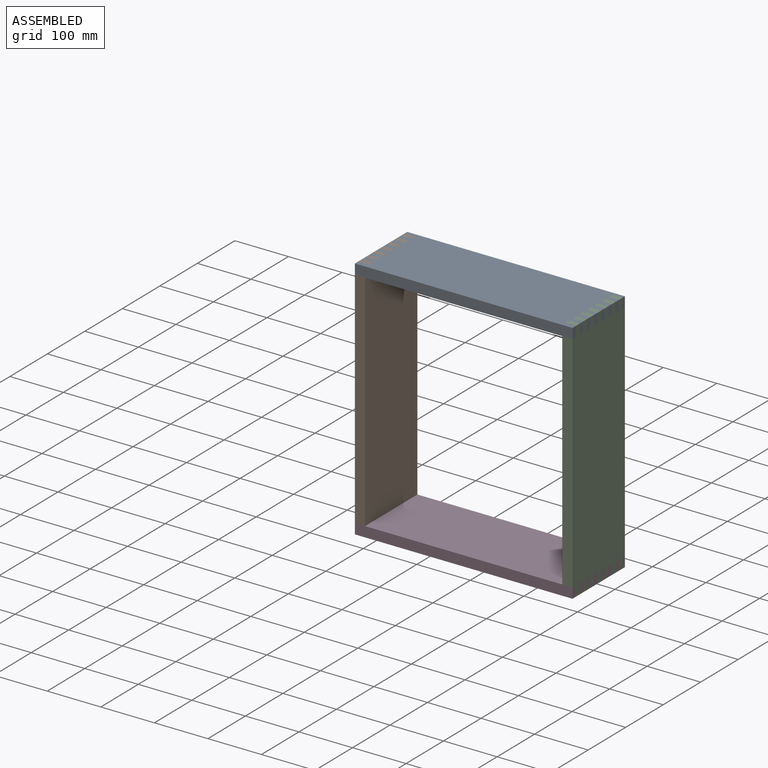
[diagram: assembled view]
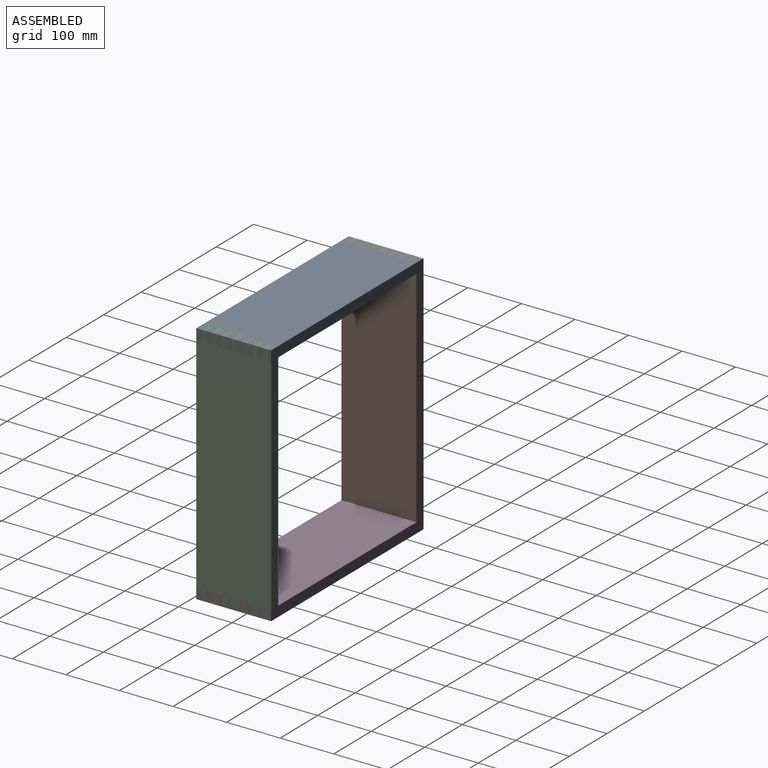
[diagram: assembled view, second angle]
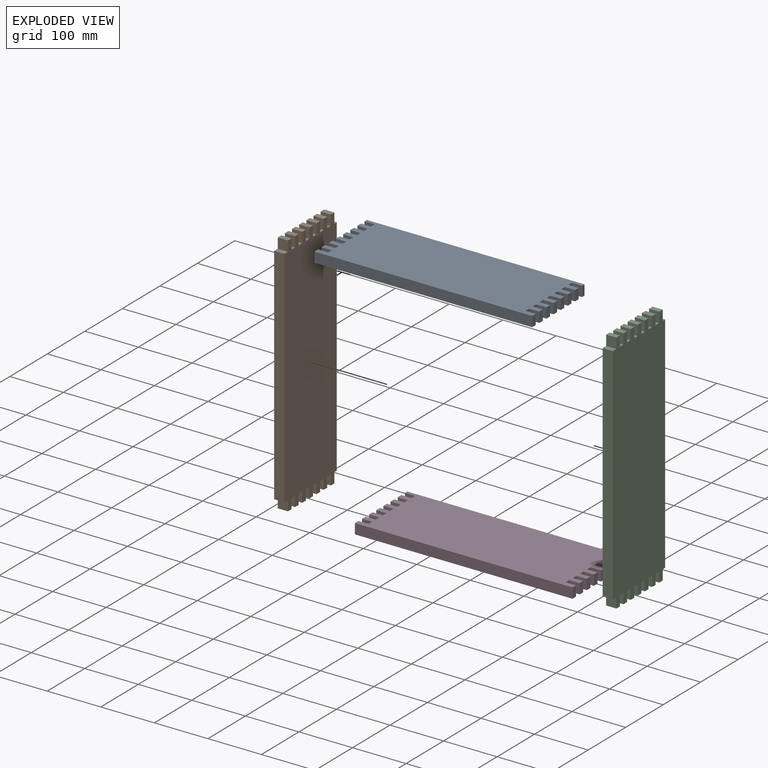
[diagram: exploded view]
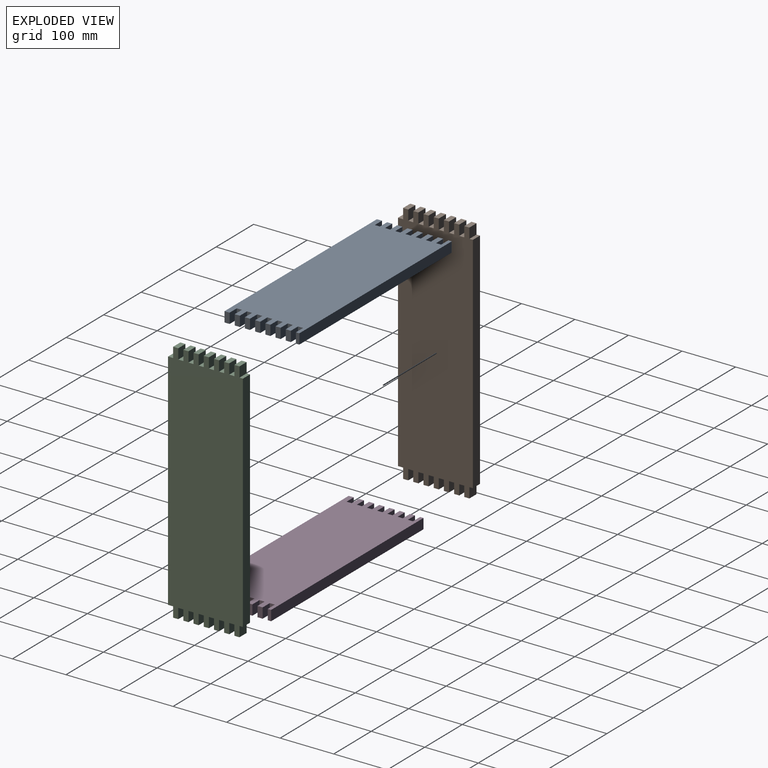
[diagram: exploded view, second angle]
ASSEMBLY  parts=4 mates=3
PART A: 62 faces, bbox 406.4x139.7x19.1 mm
  f0: plane 19.05x19.05mm, normal (0,-1,0), area 362.9mm2, adj f1,f59,f60,f61
  f1: plane 19.05x9.53mm, normal (-1,0,0), area 181.5mm2, adj f0,f2,f60,f61
  f2: plane 19.05x19.05mm, normal (0,1,0), area 362.9mm2, adj f1,f3,f60,f61
  f3: plane 19.05x9.53mm, normal (-1,0,0), area 181.5mm2, adj f2,f4,f60,f61
  f4: plane 406.4x19.05mm, normal (0,-1,0), area 7741.9mm2, adj f3,f5,f60,f61
  f5: plane 19.05x9.53mm, normal (1,0,0), area 181.5mm2, adj f4,f6,f60,f61
  f6: plane 19.05x19.05mm, normal (0,1,0), area 362.9mm2, adj f5,f7,f60,f61
  f7: plane 19.05x9.53mm, normal (1,0,0), area 181.5mm2, adj f6,f8,f60,f61
  f8: plane 19.05x19.05mm, normal (0,-1,0), area 362.9mm2, adj f7,f9,f60,f61
  f9: plane 19.05x9.53mm, normal (1,0,0), area 181.5mm2, adj f8,f10,f60,f61
  f10: plane 19.05x19.05mm, normal (0,1,0), area 362.9mm2, adj f9,f11,f60,f61
  f11: plane 19.05x9.53mm, normal (1,0,0), area 181.5mm2, adj f10,f12,f60,f61
  f12: plane 19.05x19.05mm, normal (0,-1,0), area 362.9mm2, adj f11,f13,f60,f61
  f13: plane 19.05x9.53mm, normal (1,0,0), area 181.5mm2, adj f12,f14,f60,f61
  f14: plane 19.05x19.05mm, normal (0,1,0), area 362.9mm2, adj f13,f15,f60,f61
  f15: plane 19.05x9.53mm, normal (1,0,0), area 181.5mm2, adj f14,f16,f60,f61
  f16: plane 19.05x19.05mm, normal (0,-1,0), area 362.9mm2, adj f15,f17,f60,f61
  f17: plane 19.05x9.53mm, normal (1,0,0), area 181.5mm2, adj f16,f18,f60,f61
  f18: plane 19.05x19.05mm, normal (0,1,0), area 362.9mm2, adj f17,f19,f60,f61
  f19: plane 19.05x9.53mm, normal (1,0,0), area 181.5mm2, adj f18,f20,f60,f61
  f20: plane 19.05x19.05mm, normal (0,-1,0), area 362.9mm2, adj f19,f21,f60,f61
  f21: plane 19.05x9.53mm, normal (1,0,0), area 181.5mm2, adj f20,f22,f60,f61
  f22: plane 19.05x19.05mm, normal (0,1,0), area 362.9mm2, adj f21,f23,f60,f61
  f23: plane 19.05x9.53mm, normal (1,0,0), area 181.5mm2, adj f22,f24,f60,f61
  f24: plane 19.05x19.05mm, normal (0,-1,0), area 362.9mm2, adj f23,f25,f60,f61
  f25: plane 19.05x9.53mm, normal (1,0,0), area 181.5mm2, adj f24,f26,f60,f61
  f26: plane 19.05x19.05mm, normal (0,1,0), area 362.9mm2, adj f25,f27,f60,f61
  f27: plane 19.05x9.53mm, normal (1,0,0), area 181.5mm2, adj f26,f28,f60,f61
  f28: plane 19.05x19.05mm, normal (0,-1,0), area 362.9mm2, adj f27,f29,f60,f61
  f29: plane 19.05x9.53mm, normal (1,0,0), area 181.5mm2, adj f28,f30,f60,f61
  f30: plane 19.05x19.05mm, normal (0,1,0), area 362.9mm2, adj f29,f31,f60,f61
  f31: plane 19.05x9.53mm, normal (1,0,0), area 181.5mm2, adj f30,f32,f60,f61
  f32: plane 19.05x19.05mm, normal (0,-1,0), area 362.9mm2, adj f31,f33,f60,f61
  f33: plane 19.05x6.35mm, normal (1,0,0), area 121mm2, adj f32,f34,f60,f61
  f34: plane 406.4x19.05mm, normal (0,1,0), area 7741.9mm2, adj f33,f35,f60,f61
  f35: plane 19.05x6.35mm, normal (-1,0,0), area 121mm2, adj f34,f36,f60,f61
  f36: plane 19.05x19.05mm, normal (0,-1,0), area 362.9mm2, adj f35,f37,f60,f61
  f37: plane 19.05x9.53mm, normal (-1,0,0), area 181.5mm2, adj f36,f38,f60,f61
  f38: plane 19.05x19.05mm, normal (0,1,0), area 362.9mm2, adj f37,f39,f60,f61
  f39: plane 19.05x9.53mm, normal (-1,0,0), area 181.5mm2, adj f38,f40,f60,f61
  f40: plane 19.05x19.05mm, normal (0,-1,0), area 362.9mm2, adj f39,f41,f60,f61
  f41: plane 19.05x9.53mm, normal (-1,0,0), area 181.5mm2, adj f40,f42,f60,f61
  f42: plane 19.05x19.05mm, normal (0,1,0), area 362.9mm2, adj f41,f43,f60,f61
  f43: plane 19.05x9.53mm, normal (-1,0,0), area 181.5mm2, adj f42,f44,f60,f61
  f44: plane 19.05x19.05mm, normal (0,-1,0), area 362.9mm2, adj f43,f45,f60,f61
  f45: plane 19.05x9.53mm, normal (-1,0,0), area 181.5mm2, adj f44,f46,f60,f61
  f46: plane 19.05x19.05mm, normal (0,1,0), area 362.9mm2, adj f45,f47,f60,f61
  f47: plane 19.05x9.53mm, normal (-1,0,0), area 181.5mm2, adj f46,f48,f60,f61
  f48: plane 19.05x19.05mm, normal (0,-1,0), area 362.9mm2, adj f47,f49,f60,f61
  f49: plane 19.05x9.53mm, normal (-1,0,0), area 181.5mm2, adj f48,f50,f60,f61
  f50: plane 19.05x19.05mm, normal (0,1,0), area 362.9mm2, adj f49,f51,f60,f61
  f51: plane 19.05x9.53mm, normal (-1,0,0), area 181.5mm2, adj f50,f52,f60,f61
  f52: plane 19.05x19.05mm, normal (0,-1,0), area 362.9mm2, adj f51,f53,f60,f61
  f53: plane 19.05x9.53mm, normal (-1,0,0), area 181.5mm2, adj f52,f54,f60,f61
  f54: plane 19.05x19.05mm, normal (0,1,0), area 362.9mm2, adj f53,f55,f60,f61
  f55: plane 19.05x9.53mm, normal (-1,0,0), area 181.5mm2, adj f54,f56,f60,f61
  f56: plane 19.05x19.05mm, normal (0,-1,0), area 362.9mm2, adj f55,f57,f60,f61
  f57: plane 19.05x9.53mm, normal (-1,0,0), area 181.5mm2, adj f56,f58,f60,f61
  f58: plane 19.05x19.05mm, normal (0,1,0), area 362.9mm2, adj f57,f59,f60,f61
  f59: plane 19.05x9.53mm, normal (-1,0,0), area 181.5mm2, adj f0,f58,f60,f61
  f60: plane 406.4x139.7mm, normal (0,0,1), area 54233.8mm2, adj f0,f1,f2,f3,f4,f5,f6,f7
  f61: plane 406.4x139.7mm, normal (0,0,-1), area 54233.8mm2, adj f0,f1,f2,f3,f4,f5,f6,f7
PART B: 62 faces, bbox 457.2x139.7x19.1 mm
  f0: plane 19.05x9.53mm, normal (-1,0,0), area 181.5mm2, adj f1,f59,f60,f61
  f1: plane 19.05x19.05mm, normal (0,1,0), area 362.9mm2, adj f0,f2,f60,f61
  f2: plane 19.05x9.53mm, normal (-1,0,0), area 181.5mm2, adj f1,f3,f60,f61
  f3: plane 19.05x19.05mm, normal (0,-1,0), area 362.9mm2, adj f2,f4,f60,f61
  f4: plane 19.05x9.53mm, normal (-1,0,0), area 181.5mm2, adj f3,f5,f60,f61
  f5: plane 19.05x19.05mm, normal (0,1,0), area 362.9mm2, adj f4,f6,f60,f61
  f6: plane 19.05x9.53mm, normal (-1,0,0), area 181.5mm2, adj f5,f7,f60,f61
  f7: plane 19.05x19.05mm, normal (0,-1,0), area 362.9mm2, adj f6,f8,f60,f61
  f8: plane 19.05x9.53mm, normal (-1,0,0), area 181.5mm2, adj f7,f9,f60,f61
  f9: plane 19.05x19.05mm, normal (0,1,0), area 362.9mm2, adj f8,f10,f60,f61
  f10: plane 19.05x9.53mm, normal (-1,0,0), area 181.5mm2, adj f9,f11,f60,f61
  f11: plane 19.05x19.05mm, normal (0,-1,0), area 362.9mm2, adj f10,f12,f60,f61
  f12: plane 19.05x9.53mm, normal (-1,0,0), area 181.5mm2, adj f11,f13,f60,f61
  f13: plane 19.05x19.05mm, normal (0,1,0), area 362.9mm2, adj f12,f14,f60,f61
  f14: plane 19.05x9.53mm, normal (-1,0,0), area 181.5mm2, adj f13,f15,f60,f61
  f15: plane 19.05x19.05mm, normal (0,-1,0), area 362.9mm2, adj f14,f16,f60,f61
  f16: plane 19.05x9.53mm, normal (-1,0,0), area 181.5mm2, adj f15,f17,f60,f61
  f17: plane 19.05x19.05mm, normal (0,1,0), area 362.9mm2, adj f16,f18,f60,f61
  f18: plane 19.05x9.53mm, normal (-1,0,0), area 181.5mm2, adj f17,f19,f60,f61
  f19: plane 19.05x19.05mm, normal (0,-1,0), area 362.9mm2, adj f18,f20,f60,f61
  f20: plane 19.05x9.53mm, normal (-1,0,0), area 181.5mm2, adj f19,f21,f60,f61
  f21: plane 19.05x19.05mm, normal (0,1,0), area 362.9mm2, adj f20,f22,f60,f61
  f22: plane 19.05x9.53mm, normal (-1,0,0), area 181.5mm2, adj f21,f23,f60,f61
  f23: plane 19.05x19.05mm, normal (0,-1,0), area 362.9mm2, adj f22,f24,f60,f61
  f24: plane 19.05x9.53mm, normal (-1,0,0), area 181.5mm2, adj f23,f25,f60,f61
  f25: plane 419.1x19.05mm, normal (0,-1,0), area 7983.9mm2, adj f24,f26,f60,f61
  f26: plane 19.05x9.53mm, normal (1,0,0), area 181.5mm2, adj f25,f27,f60,f61
  f27: plane 19.05x19.05mm, normal (0,-1,0), area 362.9mm2, adj f26,f28,f60,f61
  f28: plane 19.05x9.53mm, normal (1,0,0), area 181.5mm2, adj f27,f29,f60,f61
  f29: plane 19.05x19.05mm, normal (0,1,0), area 362.9mm2, adj f28,f30,f60,f61
  f30: plane 19.05x9.53mm, normal (1,0,0), area 181.5mm2, adj f29,f31,f60,f61
  f31: plane 19.05x19.05mm, normal (0,-1,0), area 362.9mm2, adj f30,f32,f60,f61
  f32: plane 19.05x9.53mm, normal (1,0,0), area 181.5mm2, adj f31,f33,f60,f61
  f33: plane 19.05x19.05mm, normal (0,1,0), area 362.9mm2, adj f32,f34,f60,f61
  f34: plane 19.05x9.53mm, normal (1,0,0), area 181.5mm2, adj f33,f35,f60,f61
  f35: plane 19.05x19.05mm, normal (0,-1,0), area 362.9mm2, adj f34,f36,f60,f61
  f36: plane 19.05x9.53mm, normal (1,0,0), area 181.5mm2, adj f35,f37,f60,f61
  f37: plane 19.05x19.05mm, normal (0,1,0), area 362.9mm2, adj f36,f38,f60,f61
  f38: plane 19.05x9.53mm, normal (1,0,0), area 181.5mm2, adj f37,f39,f60,f61
  f39: plane 19.05x19.05mm, normal (0,-1,0), area 362.9mm2, adj f38,f40,f60,f61
  f40: plane 19.05x9.53mm, normal (1,0,0), area 181.5mm2, adj f39,f41,f60,f61
  f41: plane 19.05x19.05mm, normal (0,1,0), area 362.9mm2, adj f40,f42,f60,f61
  f42: plane 19.05x9.53mm, normal (1,0,0), area 181.5mm2, adj f41,f43,f60,f61
  f43: plane 19.05x19.05mm, normal (0,-1,0), area 362.9mm2, adj f42,f44,f60,f61
  f44: plane 19.05x9.53mm, normal (1,0,0), area 181.5mm2, adj f43,f45,f60,f61
  f45: plane 19.05x19.05mm, normal (0,1,0), area 362.9mm2, adj f44,f46,f60,f61
  f46: plane 19.05x9.53mm, normal (1,0,0), area 181.5mm2, adj f45,f47,f60,f61
  f47: plane 19.05x19.05mm, normal (0,-1,0), area 362.9mm2, adj f46,f48,f60,f61
  f48: plane 19.05x9.53mm, normal (1,0,0), area 181.5mm2, adj f47,f49,f60,f61
  f49: plane 19.05x19.05mm, normal (0,1,0), area 362.9mm2, adj f48,f50,f60,f61
  f50: plane 19.05x9.53mm, normal (1,0,0), area 181.5mm2, adj f49,f51,f60,f61
  f51: plane 19.05x19.05mm, normal (0,-1,0), area 362.9mm2, adj f50,f52,f60,f61
  f52: plane 19.05x9.53mm, normal (1,0,0), area 181.5mm2, adj f51,f53,f60,f61
  f53: plane 19.05x19.05mm, normal (0,1,0), area 362.9mm2, adj f52,f54,f60,f61
  f54: plane 19.05x6.35mm, normal (1,0,0), area 121mm2, adj f53,f55,f60,f61
  f55: plane 419.1x19.05mm, normal (0,1,0), area 7983.9mm2, adj f54,f56,f60,f61
  f56: plane 19.05x6.35mm, normal (-1,0,0), area 121mm2, adj f55,f57,f60,f61
  f57: plane 19.05x19.05mm, normal (0,1,0), area 362.9mm2, adj f56,f58,f60,f61
  f58: plane 19.05x9.53mm, normal (-1,0,0), area 181.5mm2, adj f57,f59,f60,f61
  f59: plane 19.05x19.05mm, normal (0,-1,0), area 362.9mm2, adj f0,f58,f60,f61
  f60: plane 457.2x139.7mm, normal (0,0,1), area 61088.6mm2, adj f0,f1,f2,f3,f4,f5,f6,f7
  f61: plane 457.2x139.7mm, normal (0,0,-1), area 61088.6mm2, adj f0,f1,f2,f3,f4,f5,f6,f7
PART C: 62 faces, bbox 457.2x139.7x19.1 mm
  f0: plane 19.05x9.53mm, normal (-1,0,0), area 181.5mm2, adj f1,f59,f60,f61
  f1: plane 19.05x19.05mm, normal (0,1,0), area 362.9mm2, adj f0,f2,f60,f61
  f2: plane 19.05x9.53mm, normal (-1,0,0), area 181.5mm2, adj f1,f3,f60,f61
  f3: plane 19.05x19.05mm, normal (0,-1,0), area 362.9mm2, adj f2,f4,f60,f61
  f4: plane 19.05x9.53mm, normal (-1,0,0), area 181.5mm2, adj f3,f5,f60,f61
  f5: plane 19.05x19.05mm, normal (0,1,0), area 362.9mm2, adj f4,f6,f60,f61
  f6: plane 19.05x9.53mm, normal (-1,0,0), area 181.5mm2, adj f5,f7,f60,f61
  f7: plane 19.05x19.05mm, normal (0,-1,0), area 362.9mm2, adj f6,f8,f60,f61
  f8: plane 19.05x9.53mm, normal (-1,0,0), area 181.5mm2, adj f7,f9,f60,f61
  f9: plane 19.05x19.05mm, normal (0,1,0), area 362.9mm2, adj f8,f10,f60,f61
  f10: plane 19.05x9.53mm, normal (-1,0,0), area 181.5mm2, adj f9,f11,f60,f61
  f11: plane 19.05x19.05mm, normal (0,-1,0), area 362.9mm2, adj f10,f12,f60,f61
  f12: plane 19.05x9.53mm, normal (-1,0,0), area 181.5mm2, adj f11,f13,f60,f61
  f13: plane 19.05x19.05mm, normal (0,1,0), area 362.9mm2, adj f12,f14,f60,f61
  f14: plane 19.05x9.53mm, normal (-1,0,0), area 181.5mm2, adj f13,f15,f60,f61
  f15: plane 19.05x19.05mm, normal (0,-1,0), area 362.9mm2, adj f14,f16,f60,f61
  f16: plane 19.05x9.53mm, normal (-1,0,0), area 181.5mm2, adj f15,f17,f60,f61
  f17: plane 19.05x19.05mm, normal (0,1,0), area 362.9mm2, adj f16,f18,f60,f61
  f18: plane 19.05x9.53mm, normal (-1,0,0), area 181.5mm2, adj f17,f19,f60,f61
  f19: plane 19.05x19.05mm, normal (0,-1,0), area 362.9mm2, adj f18,f20,f60,f61
  f20: plane 19.05x9.53mm, normal (-1,0,0), area 181.5mm2, adj f19,f21,f60,f61
  f21: plane 19.05x19.05mm, normal (0,1,0), area 362.9mm2, adj f20,f22,f60,f61
  f22: plane 19.05x9.53mm, normal (-1,0,0), area 181.5mm2, adj f21,f23,f60,f61
  f23: plane 19.05x19.05mm, normal (0,-1,0), area 362.9mm2, adj f22,f24,f60,f61
  f24: plane 19.05x9.53mm, normal (-1,0,0), area 181.5mm2, adj f23,f25,f60,f61
  f25: plane 419.1x19.05mm, normal (0,-1,0), area 7983.9mm2, adj f24,f26,f60,f61
  f26: plane 19.05x9.53mm, normal (1,0,0), area 181.5mm2, adj f25,f27,f60,f61
  f27: plane 19.05x19.05mm, normal (0,-1,0), area 362.9mm2, adj f26,f28,f60,f61
  f28: plane 19.05x9.53mm, normal (1,0,0), area 181.5mm2, adj f27,f29,f60,f61
  f29: plane 19.05x19.05mm, normal (0,1,0), area 362.9mm2, adj f28,f30,f60,f61
  f30: plane 19.05x9.53mm, normal (1,0,0), area 181.5mm2, adj f29,f31,f60,f61
  f31: plane 19.05x19.05mm, normal (0,-1,0), area 362.9mm2, adj f30,f32,f60,f61
  f32: plane 19.05x9.53mm, normal (1,0,0), area 181.5mm2, adj f31,f33,f60,f61
  f33: plane 19.05x19.05mm, normal (0,1,0), area 362.9mm2, adj f32,f34,f60,f61
  f34: plane 19.05x9.53mm, normal (1,0,0), area 181.5mm2, adj f33,f35,f60,f61
  f35: plane 19.05x19.05mm, normal (0,-1,0), area 362.9mm2, adj f34,f36,f60,f61
  f36: plane 19.05x9.53mm, normal (1,0,0), area 181.5mm2, adj f35,f37,f60,f61
  f37: plane 19.05x19.05mm, normal (0,1,0), area 362.9mm2, adj f36,f38,f60,f61
  f38: plane 19.05x9.53mm, normal (1,0,0), area 181.5mm2, adj f37,f39,f60,f61
  f39: plane 19.05x19.05mm, normal (0,-1,0), area 362.9mm2, adj f38,f40,f60,f61
  f40: plane 19.05x9.53mm, normal (1,0,0), area 181.5mm2, adj f39,f41,f60,f61
  f41: plane 19.05x19.05mm, normal (0,1,0), area 362.9mm2, adj f40,f42,f60,f61
  f42: plane 19.05x9.53mm, normal (1,0,0), area 181.5mm2, adj f41,f43,f60,f61
  f43: plane 19.05x19.05mm, normal (0,-1,0), area 362.9mm2, adj f42,f44,f60,f61
  f44: plane 19.05x9.53mm, normal (1,0,0), area 181.5mm2, adj f43,f45,f60,f61
  f45: plane 19.05x19.05mm, normal (0,1,0), area 362.9mm2, adj f44,f46,f60,f61
  f46: plane 19.05x9.53mm, normal (1,0,0), area 181.5mm2, adj f45,f47,f60,f61
  f47: plane 19.05x19.05mm, normal (0,-1,0), area 362.9mm2, adj f46,f48,f60,f61
  f48: plane 19.05x9.53mm, normal (1,0,0), area 181.5mm2, adj f47,f49,f60,f61
  f49: plane 19.05x19.05mm, normal (0,1,0), area 362.9mm2, adj f48,f50,f60,f61
  f50: plane 19.05x9.53mm, normal (1,0,0), area 181.5mm2, adj f49,f51,f60,f61
  f51: plane 19.05x19.05mm, normal (0,-1,0), area 362.9mm2, adj f50,f52,f60,f61
  f52: plane 19.05x9.53mm, normal (1,0,0), area 181.5mm2, adj f51,f53,f60,f61
  f53: plane 19.05x19.05mm, normal (0,1,0), area 362.9mm2, adj f52,f54,f60,f61
  f54: plane 19.05x6.35mm, normal (1,0,0), area 121mm2, adj f53,f55,f60,f61
  f55: plane 419.1x19.05mm, normal (0,1,0), area 7983.9mm2, adj f54,f56,f60,f61
  f56: plane 19.05x6.35mm, normal (-1,0,0), area 121mm2, adj f55,f57,f60,f61
  f57: plane 19.05x19.05mm, normal (0,1,0), area 362.9mm2, adj f56,f58,f60,f61
  f58: plane 19.05x9.53mm, normal (-1,0,0), area 181.5mm2, adj f57,f59,f60,f61
  f59: plane 19.05x19.05mm, normal (0,-1,0), area 362.9mm2, adj f0,f58,f60,f61
  f60: plane 457.2x139.7mm, normal (0,0,1), area 61088.6mm2, adj f0,f1,f2,f3,f4,f5,f6,f7
  f61: plane 457.2x139.7mm, normal (0,0,-1), area 61088.6mm2, adj f0,f1,f2,f3,f4,f5,f6,f7
PART D: 62 faces, bbox 406.4x139.7x19.1 mm
  f0: plane 19.05x19.05mm, normal (0,-1,0), area 362.9mm2, adj f1,f59,f60,f61
  f1: plane 19.05x9.53mm, normal (-1,0,0), area 181.5mm2, adj f0,f2,f60,f61
  f2: plane 19.05x19.05mm, normal (0,1,0), area 362.9mm2, adj f1,f3,f60,f61
  f3: plane 19.05x9.53mm, normal (-1,0,0), area 181.5mm2, adj f2,f4,f60,f61
  f4: plane 406.4x19.05mm, normal (0,-1,0), area 7741.9mm2, adj f3,f5,f60,f61
  f5: plane 19.05x9.53mm, normal (1,0,0), area 181.5mm2, adj f4,f6,f60,f61
  f6: plane 19.05x19.05mm, normal (0,1,0), area 362.9mm2, adj f5,f7,f60,f61
  f7: plane 19.05x9.53mm, normal (1,0,0), area 181.5mm2, adj f6,f8,f60,f61
  f8: plane 19.05x19.05mm, normal (0,-1,0), area 362.9mm2, adj f7,f9,f60,f61
  f9: plane 19.05x9.53mm, normal (1,0,0), area 181.5mm2, adj f8,f10,f60,f61
  f10: plane 19.05x19.05mm, normal (0,1,0), area 362.9mm2, adj f9,f11,f60,f61
  f11: plane 19.05x9.53mm, normal (1,0,0), area 181.5mm2, adj f10,f12,f60,f61
  f12: plane 19.05x19.05mm, normal (0,-1,0), area 362.9mm2, adj f11,f13,f60,f61
  f13: plane 19.05x9.53mm, normal (1,0,0), area 181.5mm2, adj f12,f14,f60,f61
  f14: plane 19.05x19.05mm, normal (0,1,0), area 362.9mm2, adj f13,f15,f60,f61
  f15: plane 19.05x9.53mm, normal (1,0,0), area 181.5mm2, adj f14,f16,f60,f61
  f16: plane 19.05x19.05mm, normal (0,-1,0), area 362.9mm2, adj f15,f17,f60,f61
  f17: plane 19.05x9.53mm, normal (1,0,0), area 181.5mm2, adj f16,f18,f60,f61
  f18: plane 19.05x19.05mm, normal (0,1,0), area 362.9mm2, adj f17,f19,f60,f61
  f19: plane 19.05x9.53mm, normal (1,0,0), area 181.5mm2, adj f18,f20,f60,f61
  f20: plane 19.05x19.05mm, normal (0,-1,0), area 362.9mm2, adj f19,f21,f60,f61
  f21: plane 19.05x9.53mm, normal (1,0,0), area 181.5mm2, adj f20,f22,f60,f61
  f22: plane 19.05x19.05mm, normal (0,1,0), area 362.9mm2, adj f21,f23,f60,f61
  f23: plane 19.05x9.53mm, normal (1,0,0), area 181.5mm2, adj f22,f24,f60,f61
  f24: plane 19.05x19.05mm, normal (0,-1,0), area 362.9mm2, adj f23,f25,f60,f61
  f25: plane 19.05x9.53mm, normal (1,0,0), area 181.5mm2, adj f24,f26,f60,f61
  f26: plane 19.05x19.05mm, normal (0,1,0), area 362.9mm2, adj f25,f27,f60,f61
  f27: plane 19.05x9.53mm, normal (1,0,0), area 181.5mm2, adj f26,f28,f60,f61
  f28: plane 19.05x19.05mm, normal (0,-1,0), area 362.9mm2, adj f27,f29,f60,f61
  f29: plane 19.05x9.53mm, normal (1,0,0), area 181.5mm2, adj f28,f30,f60,f61
  f30: plane 19.05x19.05mm, normal (0,1,0), area 362.9mm2, adj f29,f31,f60,f61
  f31: plane 19.05x9.53mm, normal (1,0,0), area 181.5mm2, adj f30,f32,f60,f61
  f32: plane 19.05x19.05mm, normal (0,-1,0), area 362.9mm2, adj f31,f33,f60,f61
  f33: plane 19.05x6.35mm, normal (1,0,0), area 121mm2, adj f32,f34,f60,f61
  f34: plane 406.4x19.05mm, normal (0,1,0), area 7741.9mm2, adj f33,f35,f60,f61
  f35: plane 19.05x6.35mm, normal (-1,0,0), area 121mm2, adj f34,f36,f60,f61
  f36: plane 19.05x19.05mm, normal (0,-1,0), area 362.9mm2, adj f35,f37,f60,f61
  f37: plane 19.05x9.53mm, normal (-1,0,0), area 181.5mm2, adj f36,f38,f60,f61
  f38: plane 19.05x19.05mm, normal (0,1,0), area 362.9mm2, adj f37,f39,f60,f61
  f39: plane 19.05x9.53mm, normal (-1,0,0), area 181.5mm2, adj f38,f40,f60,f61
  f40: plane 19.05x19.05mm, normal (0,-1,0), area 362.9mm2, adj f39,f41,f60,f61
  f41: plane 19.05x9.53mm, normal (-1,0,0), area 181.5mm2, adj f40,f42,f60,f61
  f42: plane 19.05x19.05mm, normal (0,1,0), area 362.9mm2, adj f41,f43,f60,f61
  f43: plane 19.05x9.53mm, normal (-1,0,0), area 181.5mm2, adj f42,f44,f60,f61
  f44: plane 19.05x19.05mm, normal (0,-1,0), area 362.9mm2, adj f43,f45,f60,f61
  f45: plane 19.05x9.53mm, normal (-1,0,0), area 181.5mm2, adj f44,f46,f60,f61
  f46: plane 19.05x19.05mm, normal (0,1,0), area 362.9mm2, adj f45,f47,f60,f61
  f47: plane 19.05x9.53mm, normal (-1,0,0), area 181.5mm2, adj f46,f48,f60,f61
  f48: plane 19.05x19.05mm, normal (0,-1,0), area 362.9mm2, adj f47,f49,f60,f61
  f49: plane 19.05x9.53mm, normal (-1,0,0), area 181.5mm2, adj f48,f50,f60,f61
  f50: plane 19.05x19.05mm, normal (0,1,0), area 362.9mm2, adj f49,f51,f60,f61
  f51: plane 19.05x9.53mm, normal (-1,0,0), area 181.5mm2, adj f50,f52,f60,f61
  f52: plane 19.05x19.05mm, normal (0,-1,0), area 362.9mm2, adj f51,f53,f60,f61
  f53: plane 19.05x9.53mm, normal (-1,0,0), area 181.5mm2, adj f52,f54,f60,f61
  f54: plane 19.05x19.05mm, normal (0,1,0), area 362.9mm2, adj f53,f55,f60,f61
  f55: plane 19.05x9.53mm, normal (-1,0,0), area 181.5mm2, adj f54,f56,f60,f61
  f56: plane 19.05x19.05mm, normal (0,-1,0), area 362.9mm2, adj f55,f57,f60,f61
  f57: plane 19.05x9.53mm, normal (-1,0,0), area 181.5mm2, adj f56,f58,f60,f61
  f58: plane 19.05x19.05mm, normal (0,1,0), area 362.9mm2, adj f57,f59,f60,f61
  f59: plane 19.05x9.53mm, normal (-1,0,0), area 181.5mm2, adj f0,f58,f60,f61
  f60: plane 406.4x139.7mm, normal (0,0,1), area 54233.8mm2, adj f0,f1,f2,f3,f4,f5,f6,f7
  f61: plane 406.4x139.7mm, normal (0,0,-1), area 54233.8mm2, adj f0,f1,f2,f3,f4,f5,f6,f7
PLACE A rot(axis=(0.49,-0.8,0.34),0deg) t=(174.88,217.99,128.23)mm
PLACE B rot(axis=(0,-1,0),90deg) t=(-9.27,217.99,375.88)mm
PLACE C rot(axis=(0,1,0),90deg) t=(359.03,217.99,375.88)mm
PLACE D t=(-739.52,217.99,-309.92)mm
MATE fastened B.f60 <-> A.f3  axis (-1,0,0) through (-28.32,227.52,147.28)mm
MATE fastened D.f5 <-> C.f60  axis (1,0,0) through (378.08,217.99,-290.87)mm
MATE fastened A.f5 <-> C.f60  axis (1,0,0) through (378.08,217.99,128.23)mm
